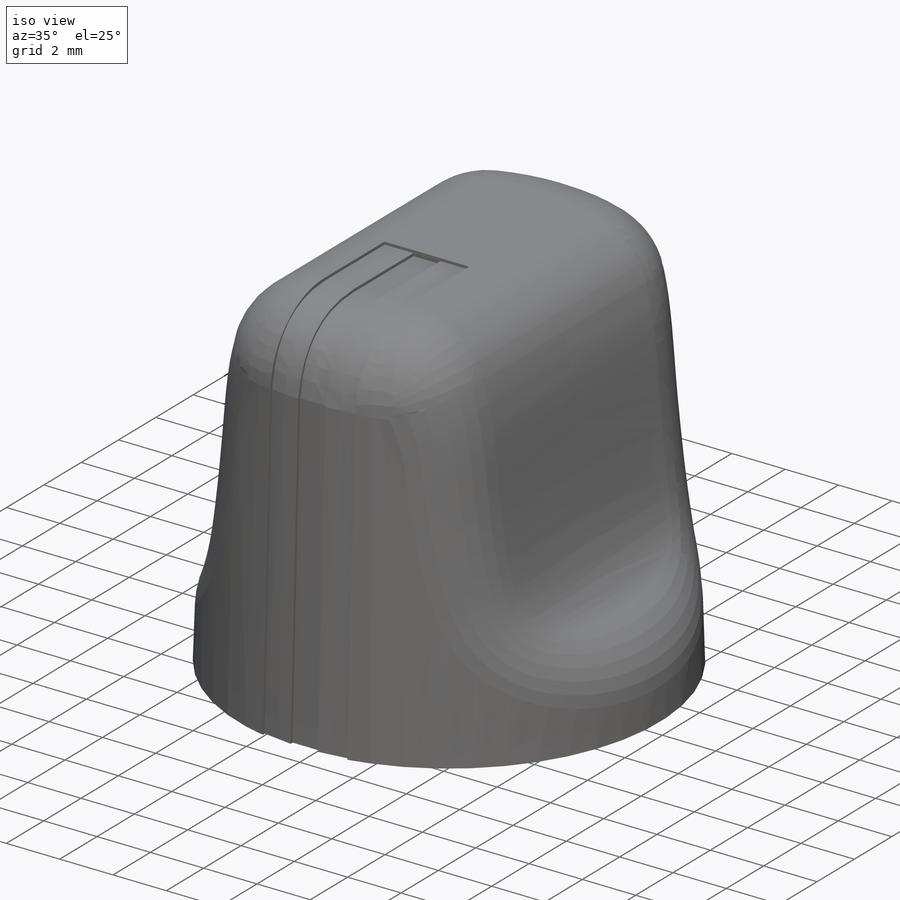
[diagram: iso view]
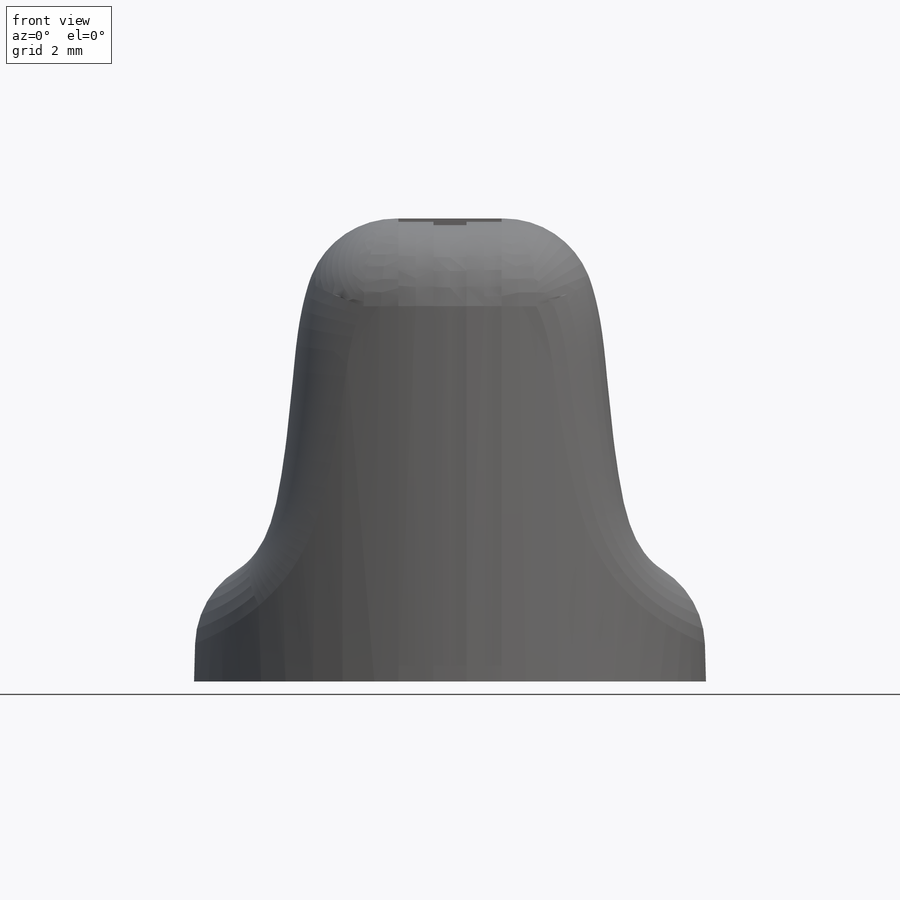
[diagram: front view]
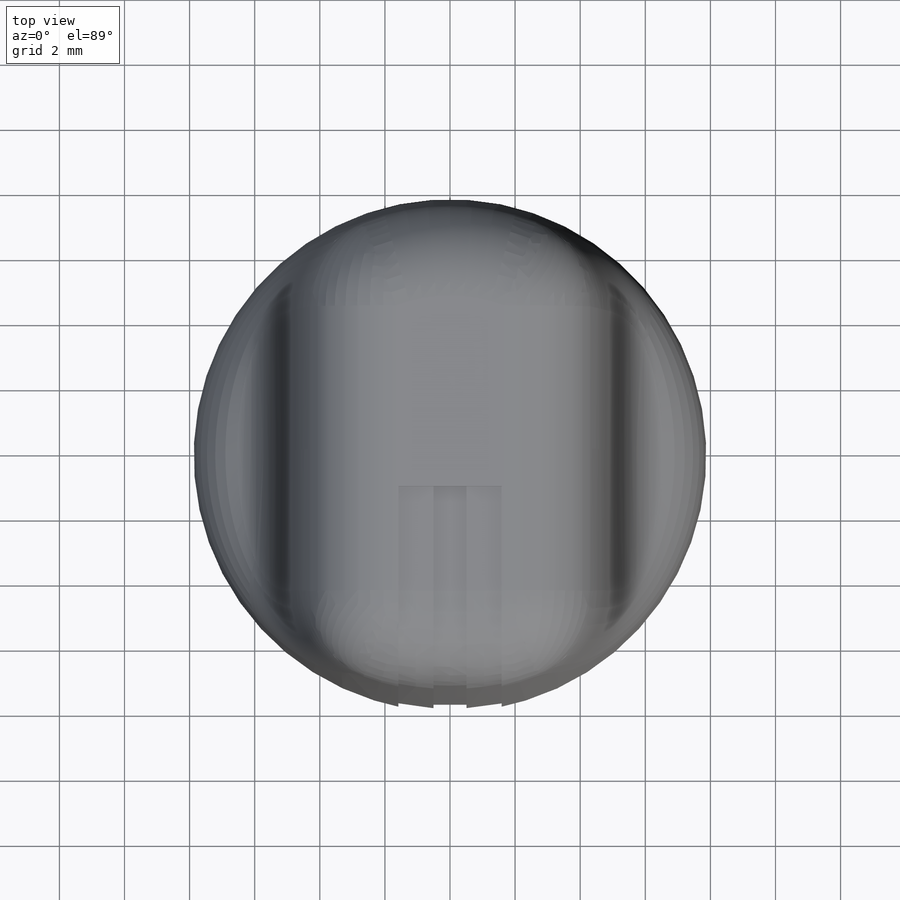
[diagram: top view]
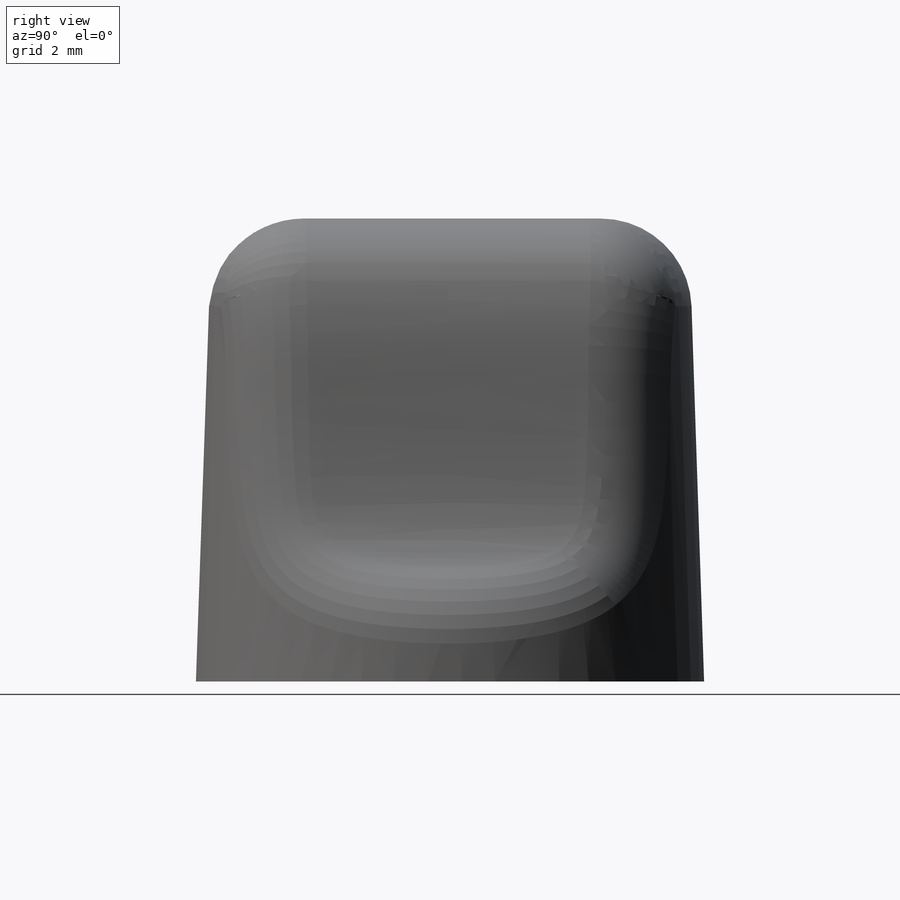
[diagram: right view]
SOLIDWORKS PART (.sldprt)
format: sldprt  version: not decoded by parser v0  size: 536,576 bytes
history: native  units: mm
features: sketch x12, cut_extrude x6, plane x3, extrude x2, mirror x2, material x1, fillet x1 (+11 scaffold rows collapsed)
feature tree (38):
  scaffold x11  (default folders/planes/origin — collapsed)
  material  "PMMA"
  sketch  "Skica2"  dims[D1=~25.720221mm]
  extrude  "Přidat vysunutím1"  Depth=3.048mm
  sketch  "Skica3"  dims[c1.D3=2.54mm c1.D2=~15.535123mm c2.D2=~1.96089deg c3.D2=4.064mm c3.D3=2.032mm c3.D4=2.032mm c3.D1=2.54mm c4.D2=2.54mm]
  extrude  "Přidat vysunutím2"  Depth=11.176mm
  sketch  "Skica12"  dims[c1.D1=1.8492mm c1.D2=6.35mm c2.D1=2.7432mm]
  cut_extrude  "Odebrat vysunutím2"  Depth=12.7mm
  sketch  "Skica13"  dims[D1=8.636mm]
  cut_extrude  "Odebrat vysunutím3"  Depth=2.032mm
  plane  "Rovina1"
  sketch  "Skica15"
  plane  "Rovina2"
  sketch  "Skica16"  dims[c1.D1=~15.738407mm c1.D2=~15.535207mm c2.D1=0.1016mm c2.D2=0.1016mm c2.D3=0.508mm]
  sketch  "Skica17"  dims[D1=3.175mm]
  cut_extrude  "Odebrat vysunutím5"  Depth=0.1016mm
  sketch  "Skica18"  dims[D1=0.0mm]
  cut_extrude  "Odebrat vysunutím6"  Depth=0.1016mm
  plane  "Rovina3"
  sketch  "Skica20"  dims[D1=3.175mm]
  sketch  "Skica22"
  fillet  "Zaoblit3"  Radius=2.794mm
  cut_extrude  "Odebrat vysunutím8"  [1 undecoded]
  sketch  "Skica23"  dims[D1=0.0mm]
  sketch  "Skica24"  dims[D1=3.048mm]
  cut_extrude  "Odebrat vysunutím9"  Depth=22.86mm
  mirror  "Zrcadlit1"
  mirror  "Zaoblit4"
decode coverage: 18 of 23 modeling features carry decoded parameters
note: ~ marks probable driven/reference dimensions
note: 1 parameter value undecoded
note: suppression state not decoded; provenance and decode notes live in map.json
